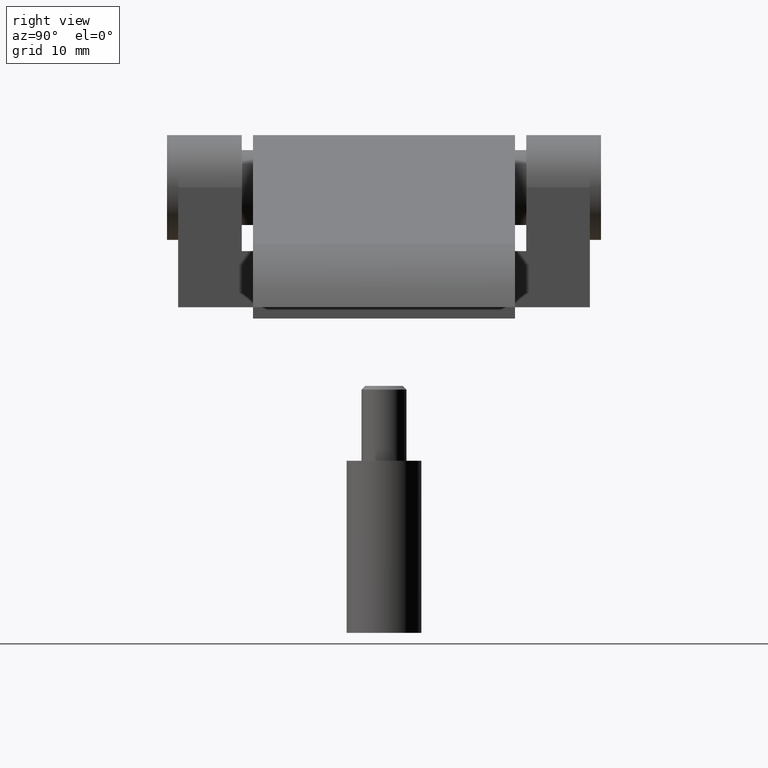
[diagram: clean part render]
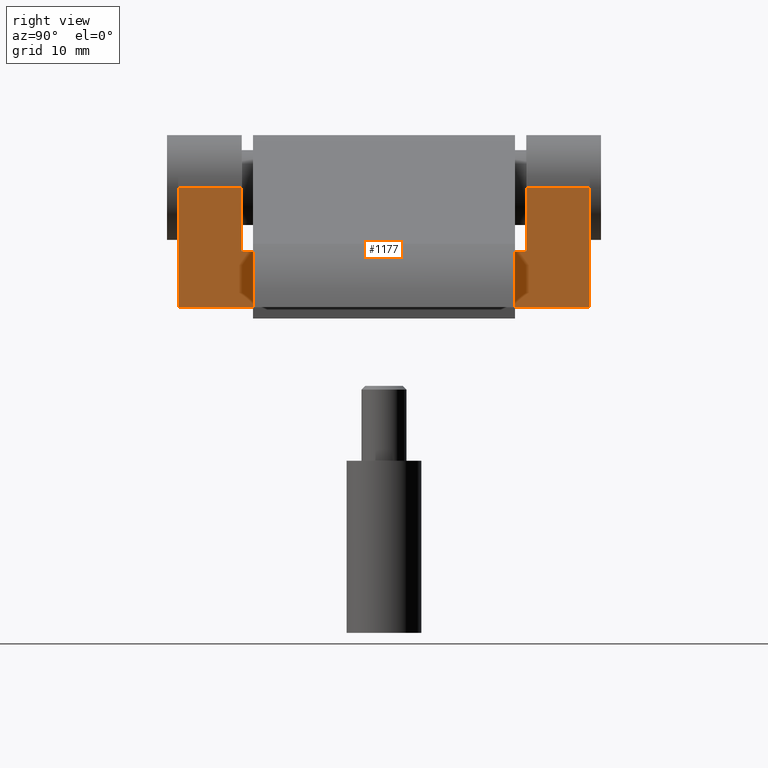
[diagram: same view with one face highlighted and labeled with its STEP entity id]
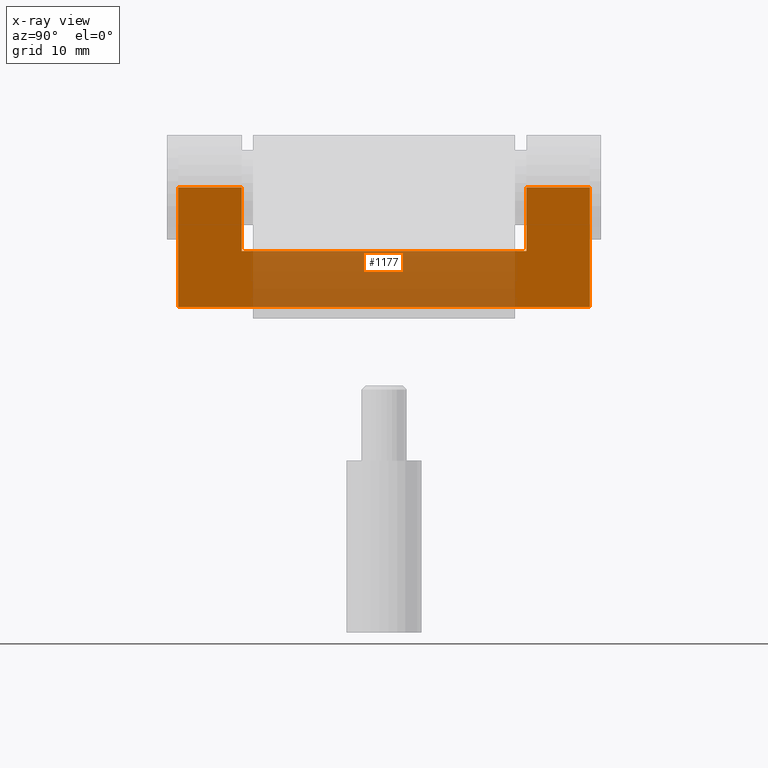
[diagram: x-ray of the same camera — body ghosted, the highlighted face saturated]
A machine part, right view. The second image highlights one B-rep face of the part: STEP entity #1177.
The next image is the same camera in x-ray: the body ghosted, the highlighted face saturated — about 47% of this face is hidden behind the body in this view.
In plain terms, the highlighted planar face has unit normal (1, 0, 0).
Its self-contained STEP definition (entity closure, byte-faithful):
#343=CARTESIAN_POINT('',(1.776357E-015,27.500000000000000,-1.683889E-015));
#344=VERTEX_POINT('',#343);
#351=CARTESIAN_POINT('',(-1.776357E-015,-27.500000000000000,1.683889E-015));
#352=VERTEX_POINT('',#351);
#353=CARTESIAN_POINT('',(-1.776357E-015,-27.500000000000000,1.683889E-015));
#354=DIRECTION('',(0.0,1.0,0.0));
#355=VECTOR('',#354,55.0);
#356=LINE('',#353,#355);
#357=EDGE_CURVE('',#352,#344,#356,.T.);
#423=CARTESIAN_POINT('',(0.0,-19.0,7.500000000000001));
#424=VERTEX_POINT('',#423);
#431=CARTESIAN_POINT('',(1.776357E-015,19.0,7.499999999999999));
#432=VERTEX_POINT('',#431);
#433=CARTESIAN_POINT('',(2.326829E-015,19.0,7.499999999999998));
#434=DIRECTION('',(0.0,-1.0,0.0));
#435=VECTOR('',#434,38.0);
#436=LINE('',#433,#435);
#437=EDGE_CURVE('',#432,#424,#436,.T.);
#902=CARTESIAN_POINT('',(0.0,19.0,15.999999999999998));
#903=VERTEX_POINT('',#902);
#904=CARTESIAN_POINT('',(8.628166E-032,19.0,16.0));
#905=DIRECTION('',(0.0,0.0,-1.0));
#906=VECTOR('',#905,8.500000000000000);
#907=LINE('',#904,#906);
#908=EDGE_CURVE('',#903,#432,#907,.T.);
#977=CARTESIAN_POINT('',(0.0,27.500000000000000,15.999999999999998));
#978=VERTEX_POINT('',#977);
#986=CARTESIAN_POINT('',(1.776357E-015,27.500000000000000,-1.683889E-015));
#987=DIRECTION('',(0.0,0.0,1.0));
#988=VECTOR('',#987,16.0);
#989=LINE('',#986,#988);
#990=EDGE_CURVE('',#344,#978,#989,.T.);
#1014=CARTESIAN_POINT('',(-1.776357E-015,-27.500000000000000,16.0));
#1015=VERTEX_POINT('',#1014);
#1016=CARTESIAN_POINT('',(-1.776357E-015,-27.500000000000000,16.0));
#1017=DIRECTION('',(0.0,0.0,-1.0));
#1018=VECTOR('',#1017,15.999999999999998);
#1019=LINE('',#1016,#1018);
#1020=EDGE_CURVE('',#1015,#352,#1019,.T.);
#1089=CARTESIAN_POINT('',(-1.776357E-015,-19.0,16.0));
#1090=VERTEX_POINT('',#1089);
#1098=CARTESIAN_POINT('',(-1.776357E-015,-19.0,7.500000000000000));
#1099=DIRECTION('',(0.0,0.0,1.0));
#1100=VECTOR('',#1099,8.500000000000000);
#1101=LINE('',#1098,#1100);
#1102=EDGE_CURVE('',#424,#1090,#1101,.T.);
#1119=CARTESIAN_POINT('',(-1.776357E-015,-19.0,16.0));
#1120=DIRECTION('',(0.0,-1.0,0.0));
#1121=VECTOR('',#1120,8.500000000000000);
#1122=LINE('',#1119,#1121);
#1123=EDGE_CURVE('',#1090,#1015,#1122,.T.);
#1136=CARTESIAN_POINT('',(0.0,27.500000000000000,15.999999999999998));
#1137=DIRECTION('',(0.0,-1.0,0.0));
#1138=VECTOR('',#1137,8.500000000000000);
#1139=LINE('',#1136,#1138);
#1140=EDGE_CURVE('',#978,#903,#1139,.T.);
#1162=CARTESIAN_POINT('',(-1.776357E-015,-33.000120001833352,-2.300120001967796));
#1163=DIRECTION('',(1.0,0.0,0.0));
#1164=DIRECTION('',(0.0,1.0,0.0));
#1165=AXIS2_PLACEMENT_3D('',#1162,#1163,#1164);
#1166=PLANE('',#1165);
#1167=ORIENTED_EDGE('',*,*,#357,.T.);
#1168=ORIENTED_EDGE('',*,*,#990,.T.);
#1169=ORIENTED_EDGE('',*,*,#1140,.T.);
#1170=ORIENTED_EDGE('',*,*,#908,.T.);
#1171=ORIENTED_EDGE('',*,*,#437,.T.);
#1172=ORIENTED_EDGE('',*,*,#1102,.T.);
#1173=ORIENTED_EDGE('',*,*,#1123,.T.);
#1174=ORIENTED_EDGE('',*,*,#1020,.T.);
#1175=EDGE_LOOP('',(#1167,#1168,#1169,#1170,#1171,#1172,#1173,#1174));
#1176=FACE_OUTER_BOUND('',#1175,.T.);
#1177=ADVANCED_FACE('',(#1176),#1166,.T.);